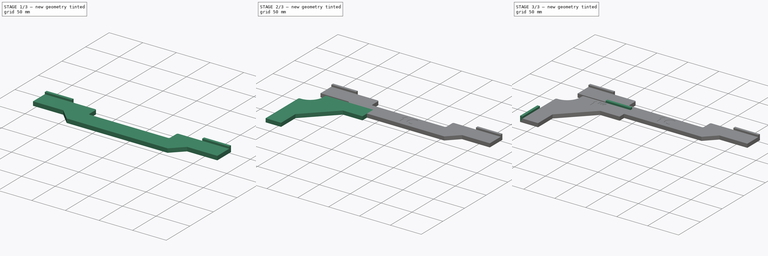
[diagram: build sequence overview — one tinted view per stage of 3, left to right]
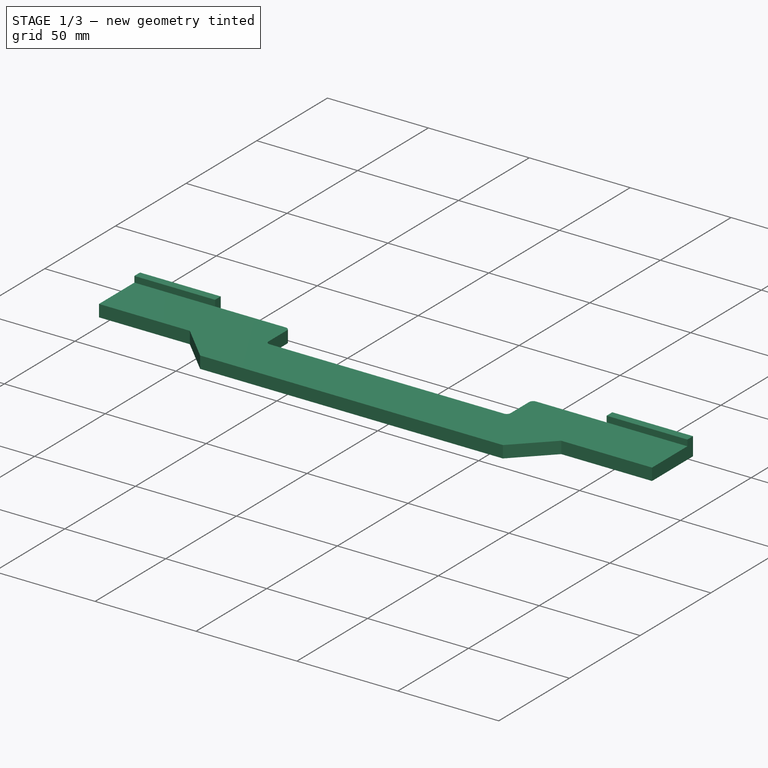
[diagram: stage 1 of 3 — iso view after this stage's code; geometry added in this stage tinted green]
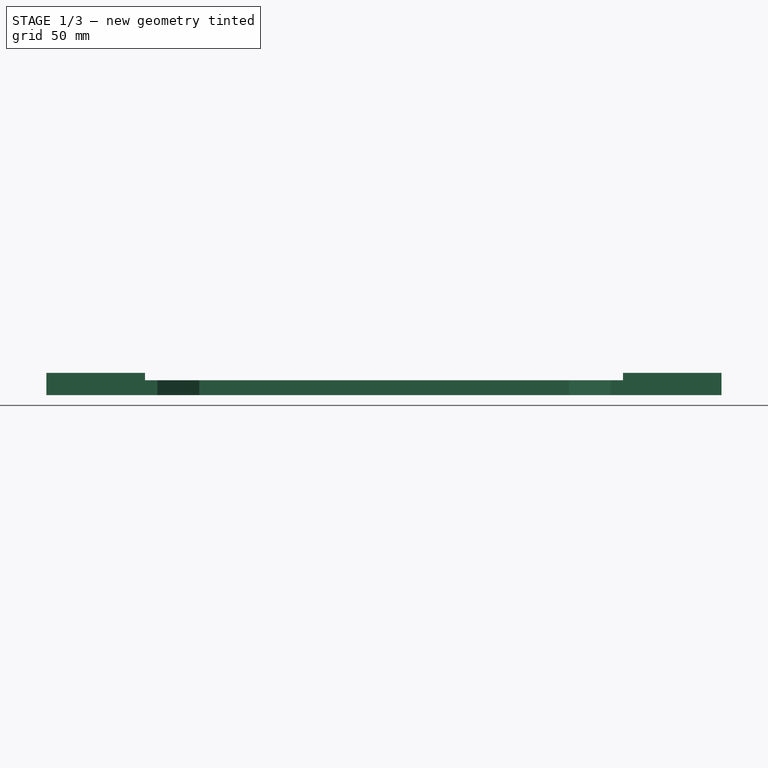
[diagram: stage 1 of 3 — front view after this stage's code; geometry added in this stage tinted green]
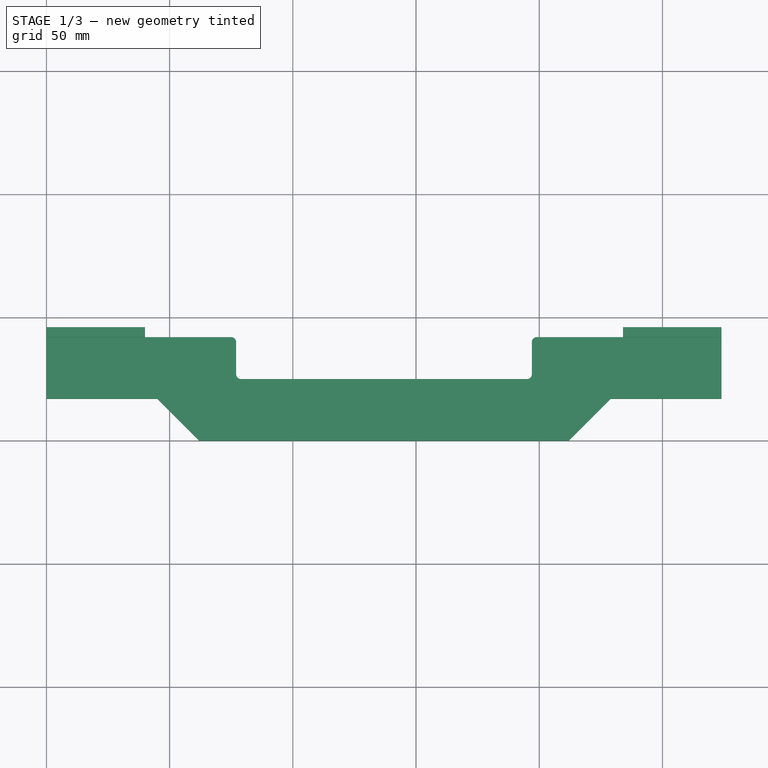
[diagram: stage 1 of 3 — top view after this stage's code; geometry added in this stage tinted green]
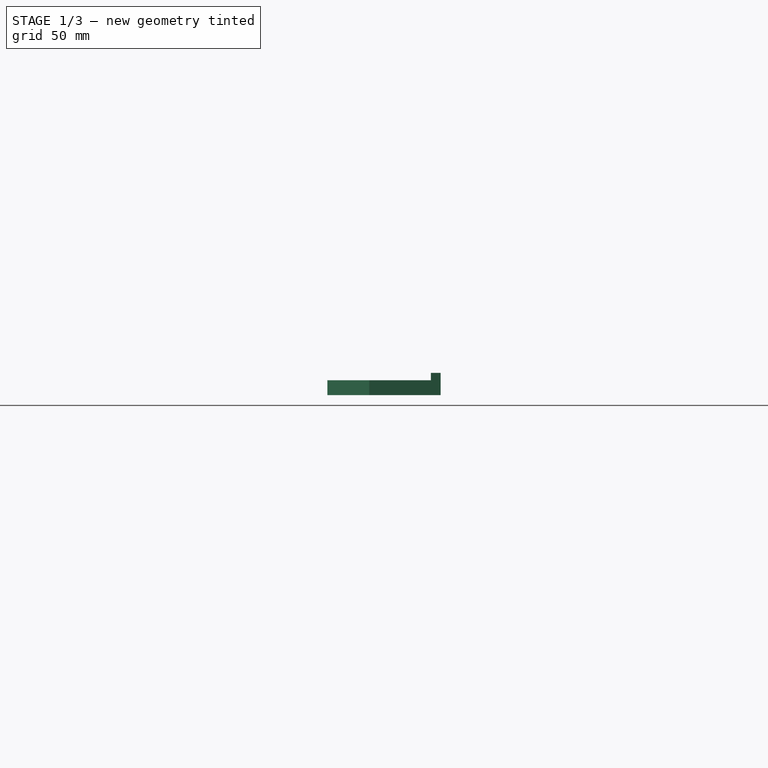
[diagram: stage 1 of 3 — right view after this stage's code; geometry added in this stage tinted green]
FCSTD DOCUMENT  (FreeCAD 1.0R39109 (Git))
Label: BottomSheet
License: All rights reserved
LicenseURL: https://en.wikipedia.org/wiki/All_rights_reserved
objects: Sketcher::SketchObject×6, PartDesign::Pad×4, PartDesign::Pocket×2, PartDesign::Body×2
note: 32 computed .brp shape members not serialized (recipe doc carries the construction recipe); baked Part::Feature solids carry a one-line shape summary decoded from their .brp

FEATURE [PartDesign::Body] Body  label="Corner"
  AllowCompound = false
  Group = -> [Sketch001,Pad,Sketch002,Pad001,Sketch003,Pocket]
  Origin = -> Origin
  Tip = -> Pocket
FEATURE [Sketcher::SketchObject] Sketch004
  ArcFitTolerance = 1e-06
  AttachmentSupport = -> [XY_Plane001]
  FullyConstrained = true
  MakeInternals = false
  MapMode = 5
  sketch-geometry (16):
    g0: ArcOfCircle CenterX=75 CenterY=40 CenterZ=0 NormalX=0 NormalY=0 NormalZ=1 AngleXU=0 Radius=2 StartAngle=0 EndAngle=1.5708
    g1: ArcOfCircle CenterX=79 CenterY=27 CenterZ=0 NormalX=0 NormalY=0 NormalZ=1 AngleXU=0 Radius=2 StartAngle=3.14159 EndAngle=4.71239
    g2: ArcOfCircle CenterX=195 CenterY=27 CenterZ=0 NormalX=0 NormalY=0 NormalZ=1 AngleXU=0 Radius=2 StartAngle=4.71239 EndAngle=6.28319
    g3: ArcOfCircle CenterX=199 CenterY=40 CenterZ=0 NormalX=0 NormalY=0 NormalZ=1 AngleXU=0 Radius=2 StartAngle=1.5708 EndAngle=3.14159
    g4: LineSegment StartX=77 StartY=40 StartZ=0 EndX=77 EndY=27 EndZ=0
    g5: LineSegment StartX=197 StartY=40 StartZ=0 EndX=197 EndY=27 EndZ=0
    g6: LineSegment StartX=195 StartY=25 StartZ=0 EndX=79 EndY=25 EndZ=0
    g7: LineSegment StartX=199 StartY=42 StartZ=0 EndX=274 EndY=42 EndZ=0
    g8: LineSegment StartX=75 StartY=42 StartZ=0 EndX=0 EndY=42 EndZ=0
    g9: LineSegment StartX=274 StartY=42 StartZ=0 EndX=274 EndY=17 EndZ=0
    g10: LineSegment StartX=0 StartY=42 StartZ=0 EndX=0 EndY=17 EndZ=0
    g11: LineSegment StartX=274 StartY=17 StartZ=0 EndX=229 EndY=17 EndZ=0
    g12: LineSegment StartX=229 StartY=17 StartZ=0 EndX=212 EndY=0 EndZ=0
    g13: LineSegment StartX=212 StartY=0 StartZ=0 EndX=62 EndY=0 EndZ=0
    g14: LineSegment StartX=62 StartY=0 StartZ=0 EndX=45 EndY=17 EndZ=0
    g15: LineSegment StartX=45 StartY=17 StartZ=0 EndX=0 EndY=17 EndZ=0
  constraints (52):
    c: Horizontal(g0,g0)
    c: Vertical(g0,g0)
    c: Radius(g0) = 2
    c: Vertical(g3,g3)
    c: Horizontal(g3,g3)
    c: Horizontal(g2,g2)
    c: Vertical(g2,g2)
    c: Horizontal(g1,g1)
    c: Vertical(g1,g1)
    c: Equal(g0,g1)
    c: Equal(g1,g2)
    c: Equal(g2,g3)
    c: Coincident(g4,g0)
    c: Coincident(g4,g1)
    c: Vertical(g4)
    c: DistanceY(g4,g4) = 13
    c: Coincident(g5,g3)
    c: Coincident(g5,g2)
    c: Vertical(g5)
    c: Coincident(g6,g2)
    c: Coincident(g6,g1)
    c: Horizontal(g6)
    c: DistanceX(g6,g6) = 116
    c: Coincident(g7,g3)
    c: Horizontal(g7)
    c: Coincident(g8,g0)
    c: Horizontal(g8)
    c: Equal(g4,g5)
    c: DistanceX(g7,g7) = 75
    c: Coincident(g9,g7)
    c: Vertical(g9)
    c: DistanceY(g9,g9) = 25
    c: Vertical(g10)
    c: DistanceX(g10,g0) = 75
    c: Coincident(g8,g10)
    c: Horizontal(g11)
    c: Coincident(g12,g11)
    c: PointOnObject(g12,g-1)
    c: Coincident(g13,g12)
    c: PointOnObject(g13,g-1)
    c: Coincident(g14,g13)
    c: Coincident(g15,g14)
    c: Horizontal(g15)
    c: Coincident(g9,g11)
    c: Equal(g15,g11)
    c: Angle(g12,g11) = 2.35619
    c: Angle(g15,g14) = 2.35619
    c: Horizontal(g14,g11)
    c: Coincident(g15,g10)
    c: PointOnObject(g10,g-2)
    c: DistanceY(g-1,g8) = 42
    c: DistanceX(g15,g15) = 45
FEATURE [PartDesign::Pad] Pad002
  Direction = (0,0,1)
  Length = 6
  Length2 = 10
  Profile = -> Sketch004
  ReferenceAxis = -> Sketch004 [N_Axis]
  Refine = true
  Suppressed = false
  Type = 0
FEATURE [Sketcher::SketchObject] Sketch005
  ArcFitTolerance = 1e-06
  AttachmentSupport = -> [XY_Plane001]
  ExternalGeometry = -> [Pad002]
  FullyConstrained = true
  MakeInternals = false
  MapMode = 5
  sketch-geometry (8):
    g0: LineSegment StartX=274 StartY=42 StartZ=0 EndX=274 EndY=46 EndZ=0
    g1: LineSegment StartX=274 StartY=46 StartZ=0 EndX=234 EndY=46 EndZ=0
    g2: LineSegment StartX=234 StartY=46 StartZ=0 EndX=234 EndY=42 EndZ=0
    g3: LineSegment StartX=234 StartY=42 StartZ=0 EndX=274 EndY=42 EndZ=0
    g4: LineSegment StartX=0 StartY=42 StartZ=0 EndX=40 EndY=42 EndZ=0
    g5: LineSegment StartX=40 StartY=42 StartZ=0 EndX=40 EndY=46 EndZ=0
    g6: LineSegment StartX=40 StartY=46 StartZ=0 EndX=0 EndY=46 EndZ=0
    g7: LineSegment StartX=0 StartY=46 StartZ=0 EndX=0 EndY=42 EndZ=0
  constraints (22):
    c: Coincident(g0,g1)
    c: Coincident(g1,g2)
    c: Coincident(g2,g3)
    c: Coincident(g3,g0)
    c: Vertical(g0)
    c: Vertical(g2)
    c: Horizontal(g1)
    c: Horizontal(g3)
    c: Coincident(g0,g-3)
    c: DistanceX(g1,g1) = 40
    c: DistanceY(g0,g0) = 4
    c: Coincident(g4,g5)
    c: Coincident(g5,g6)
    c: Coincident(g6,g7)
    c: Coincident(g7,g4)
    c: Horizontal(g4)
    c: Horizontal(g6)
    c: Vertical(g5)
    c: Vertical(g7)
    c: DistanceX(g6,g6) = 40
    c: Distance(g7,g7) = 4
    c: Coincident(g-4,g4)
FEATURE [PartDesign::Pad] Pad003
  BaseFeature = -> Pad002
  Direction = (0,0,1)
  Length = 9
  Length2 = 10
  Profile = -> Sketch005
  ReferenceAxis = -> Sketch005 [N_Axis]
  Refine = true
  Suppressed = false
  Type = 0
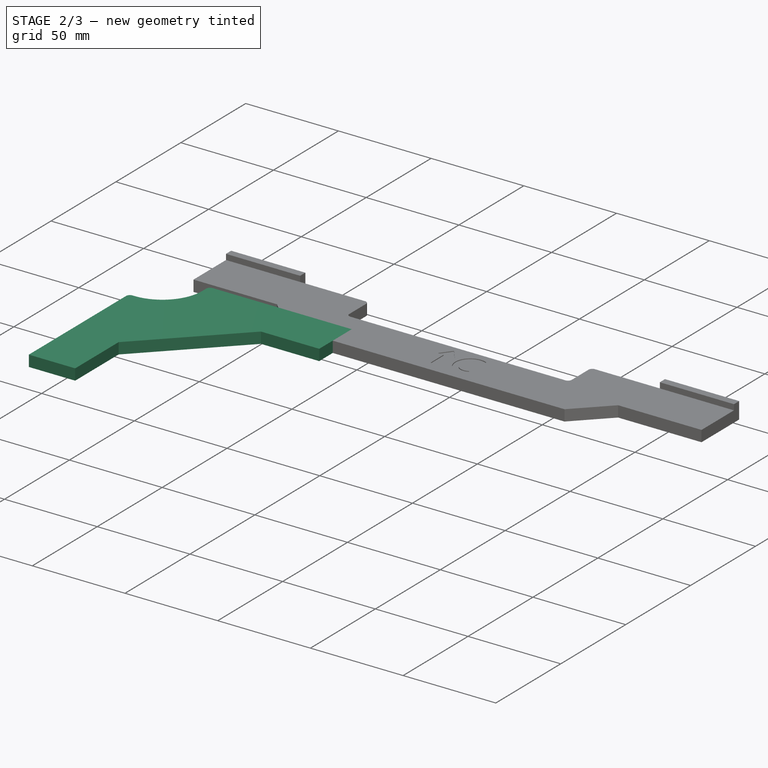
[diagram: stage 2 of 3 — iso view after this stage's code; geometry added in this stage tinted green]
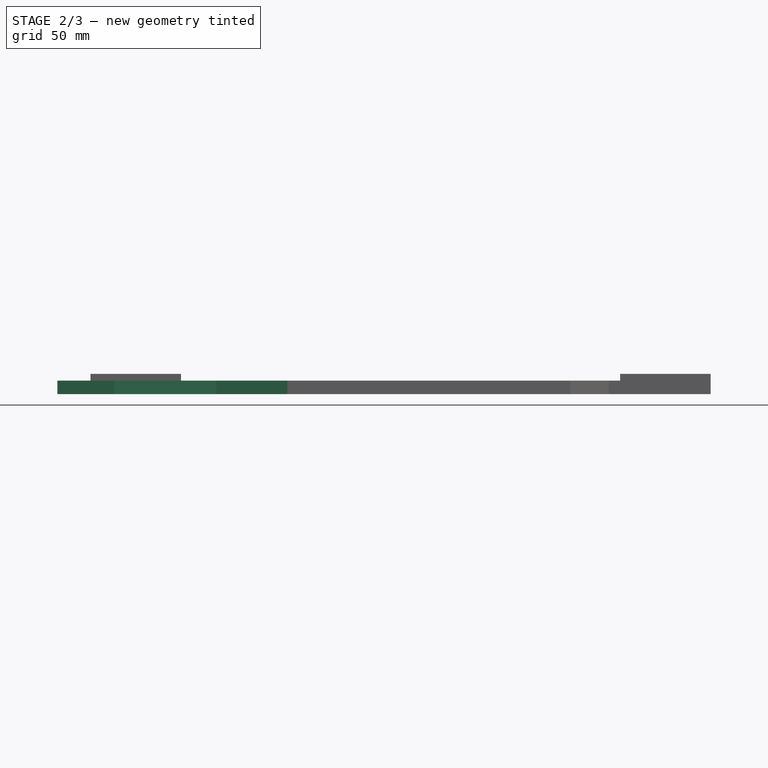
[diagram: stage 2 of 3 — front view after this stage's code; geometry added in this stage tinted green]
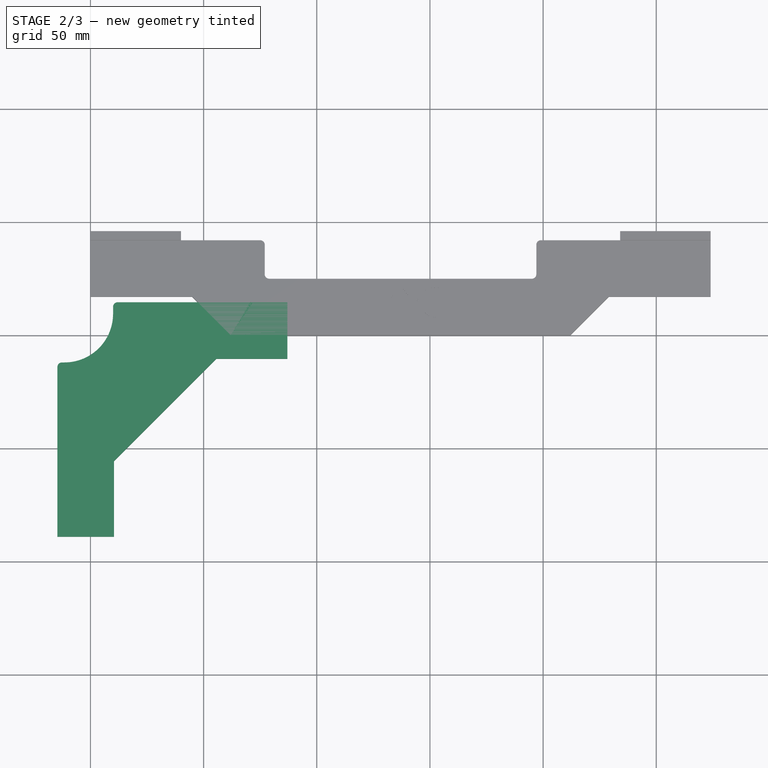
[diagram: stage 2 of 3 — top view after this stage's code; geometry added in this stage tinted green]
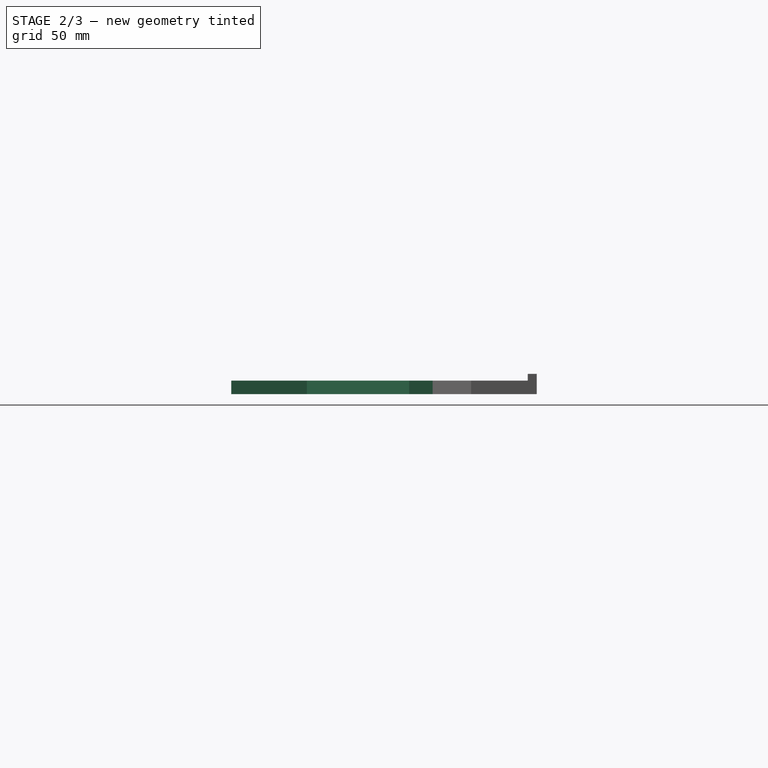
[diagram: stage 2 of 3 — right view after this stage's code; geometry added in this stage tinted green]
FEATURE [Sketcher::SketchObject] Sketch001
  ArcFitTolerance = 1e-06
  AttachmentSupport = -> [XY_Plane]
  FullyConstrained = true
  MakeInternals = false
  MapMode = 5
  sketch-geometry (12):
    g0: ArcOfCircle CenterX=-11.5 CenterY=9.5 CenterZ=0 NormalX=0 NormalY=0 NormalZ=1 AngleXU=0 Radius=21.5 StartAngle=4.71239 EndAngle=6.28319
    g1: LineSegment StartX=10 StartY=9.5 StartZ=0 EndX=10 EndY=12.6 EndZ=0
    g2: LineSegment StartX=12 StartY=14.6 StartZ=0 EndX=87 EndY=14.6 EndZ=0
    g3: LineSegment StartX=-14.6 StartY=-89 StartZ=0 EndX=-14.6 EndY=-14 EndZ=0
    g4: LineSegment StartX=-11.5 StartY=-12 StartZ=0 EndX=-12.6 EndY=-12 EndZ=0
    g5: ArcOfCircle CenterX=12 CenterY=12.6 CenterZ=0 NormalX=0 NormalY=0 NormalZ=1 AngleXU=0 Radius=2 StartAngle=1.5708 EndAngle=3.14159
    g6: ArcOfCircle CenterX=-12.6 CenterY=-14 CenterZ=0 NormalX=0 NormalY=0 NormalZ=1 AngleXU=0 Radius=2 StartAngle=1.5708 EndAngle=3.14159
    g7: LineSegment StartX=87 StartY=14.6 StartZ=0 EndX=87 EndY=-10.4 EndZ=0
    g8: LineSegment StartX=-14.6 StartY=-89 StartZ=0 EndX=10.4 EndY=-89 EndZ=0
    g9: LineSegment StartX=87 StartY=-10.4 StartZ=0 EndX=55.5741 EndY=-10.4 EndZ=0
    g10: LineSegment StartX=10.4 StartY=-89 StartZ=0 EndX=10.4 EndY=-55.5741 EndZ=0
    g11: LineSegment StartX=10.4 StartY=-55.5741 StartZ=0 EndX=55.5741 EndY=-10.4 EndZ=0
  constraints (39):
    c: Coincident(g1,g0)
    c: Vertical(g1)
    c: Horizontal(g2)
    c: Vertical(g3)
    c: Coincident(g4,g0)
    c: Horizontal(g4)
    c: Coincident(g5,g2)
    c: Coincident(g5,g1)
    c: Coincident(g6,g4)
    c: Coincident(g6,g3)
    c: Radius(g0) = 21.5
    c: Radius(g6) = 2
    c: Distance(g4,g4) = 1.1
    c: Radius(g5) = 2
    c: DistanceY(g1,g1) = 3.1
    c: Vertical(g5,g2)
    c: Horizontal(g5,g1)
    c: Vertical(g6,g4)
    c: Horizontal(g6,g3)
    c: Vertical(g0,g0)
    c: Horizontal(g0,g0)
    c: DistanceX(g0,g-1) = 11.5
    c: Distance(g0,g-1) = 9.5
    c: DistanceX(g2,g2) = 75
    c: DistanceY(g3,g3) = 75
    c: Coincident(g7,g2)
    c: Vertical(g7)
    c: Coincident(g8,g3)
    c: Horizontal(g8)
    c: DistanceY(g7,g7) = 25
    c: Equal(g7,g8)
    c: Coincident(g9,g7)
    c: Horizontal(g9)
    c: Coincident(g10,g8)
    c: Vertical(g10)
    c: Coincident(g11,g10)
    c: Coincident(g11,g9)
    c: Angle(g11,g9) = 2.35619
    c: Distance(g0,g11) = 40
FEATURE [PartDesign::Pad] Pad
  Direction = (0,0,1)
  Length = 6
  Length2 = 10
  Profile = -> Sketch001
  ReferenceAxis = -> Sketch001 [N_Axis]
  Refine = true
  Suppressed = false
  Type = 0
FEATURE [Sketcher::SketchObject] Sketch006
  ArcFitTolerance = 1e-06
  AttachmentSupport = -> [Pad003]
  ExternalGeometry = -> [Pad003]
  FullyConstrained = true
  MakeInternals = false
  MapMode = 5
  Placement = pos=(0,0,6) rot=(0,0,1;0rad)
  sketch-geometry (11):
    g0: LineSegment StartX=137 StartY=22 StartZ=0 EndX=132.4 EndY=16 EndZ=0
    g1: LineSegment StartX=132.4 StartY=16 StartZ=0 EndX=135.6 EndY=16 EndZ=0
    g2: LineSegment StartX=135.6 StartY=16 StartZ=0 EndX=135.6 EndY=6 EndZ=0
    g3: LineSegment StartX=135.6 StartY=6 StartZ=0 EndX=138.4 EndY=6 EndZ=0
    g4: LineSegment StartX=138.4 StartY=6 StartZ=0 EndX=138.4 EndY=16 EndZ=0
    g5: LineSegment StartX=138.4 StartY=16 StartZ=0 EndX=141.6 EndY=16 EndZ=0
    g6: LineSegment StartX=141.6 StartY=16 StartZ=0 EndX=137 EndY=22 EndZ=0
    g7: ArcOfCircle CenterX=152 CenterY=13.0961 CenterZ=0 NormalX=0 NormalY=0 NormalZ=1 AngleXU=0 Radius=8 StartAngle=1.09083 EndAngle=5.19235
    g8: ArcOfCircle CenterX=152 CenterY=13.0961 CenterZ=0 NormalX=0 NormalY=0 NormalZ=1 AngleXU=0 Radius=5.21637 StartAngle=1.04403 EndAngle=5.23915
    g9: LineSegment StartX=155.694 StartY=20.1922 StartZ=0 EndX=154.622 EndY=17.6053 EndZ=0
    g10: LineSegment StartX=154.622 StartY=8.58686 StartZ=0 EndX=155.694 EndY=6 EndZ=0
  constraints (34):
    c: Coincident(g1,g0)
    c: Horizontal(g1)
    c: Coincident(g2,g1)
    c: Coincident(g3,g2)
    c: Horizontal(g3)
    c: Coincident(g4,g3)
    c: Vertical(g4)
    c: Coincident(g5,g4)
    c: Horizontal(g5)
    c: Coincident(g6,g5)
    c: Coincident(g6,g0)
    c: Equal(g1,g5)
    c: Horizontal(g1,g4)
    c: Equal(g0,g6)
    c: Vertical(g2)
    c: DistanceY(g0,g0) = 6
    c: Distance(g1,g1) = 3.2
    c: DistanceY(g2,g2) = 10
    c: Distance(g3,g3) = 2.8
    c: Coincident(g8,g7)
    c: Radius(g7) = 8
    c: Coincident(g9,g7)
    c: Coincident(g9,g8)
    c: Coincident(g10,g8)
    c: Coincident(g10,g7)
    c: Vertical(g8,g8)
    c: Vertical(g7,g7)
    c: Distance(g9,g9) = 2.8
    c: Angle(g7) = 4.10152
    c: Angle(g10,g9) = 2.35619
    c: Horizontal(g7,g3)
    c: DistanceX(g0,g7) = 15
    c: DistanceX(g-3,g0) = 60
    c: DistanceY(g0,g-3) = 5
FEATURE [PartDesign::Pocket] Pocket001
  BaseFeature = -> Pad003
  Direction = (0,0,-1)
  Length = 0.4
  Length2 = 5
  Profile = -> Sketch006
  ReferenceAxis = -> Sketch006 [N_Axis]
  Refine = true
  Suppressed = false
  Type = 0
FEATURE [PartDesign::Body] Body001  label="Screen"
  AllowCompound = false
  Group = -> [Sketch004,Pad002,Sketch005,Pad003,Sketch006,Pocket001]
  Origin = -> Origin001
  Tip = -> Pocket001
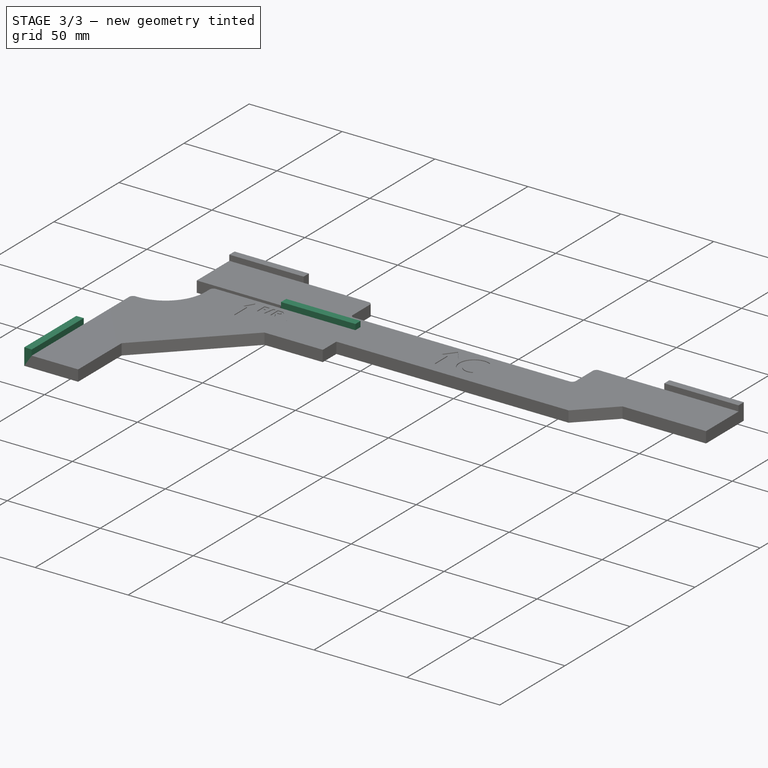
[diagram: stage 3 of 3 — iso view after this stage's code; geometry added in this stage tinted green]
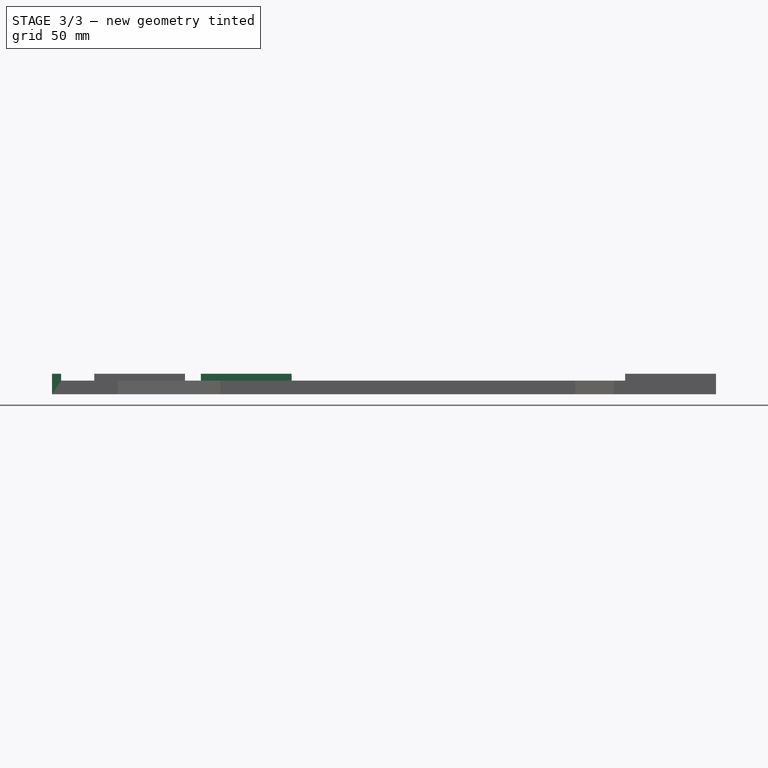
[diagram: stage 3 of 3 — front view after this stage's code; geometry added in this stage tinted green]
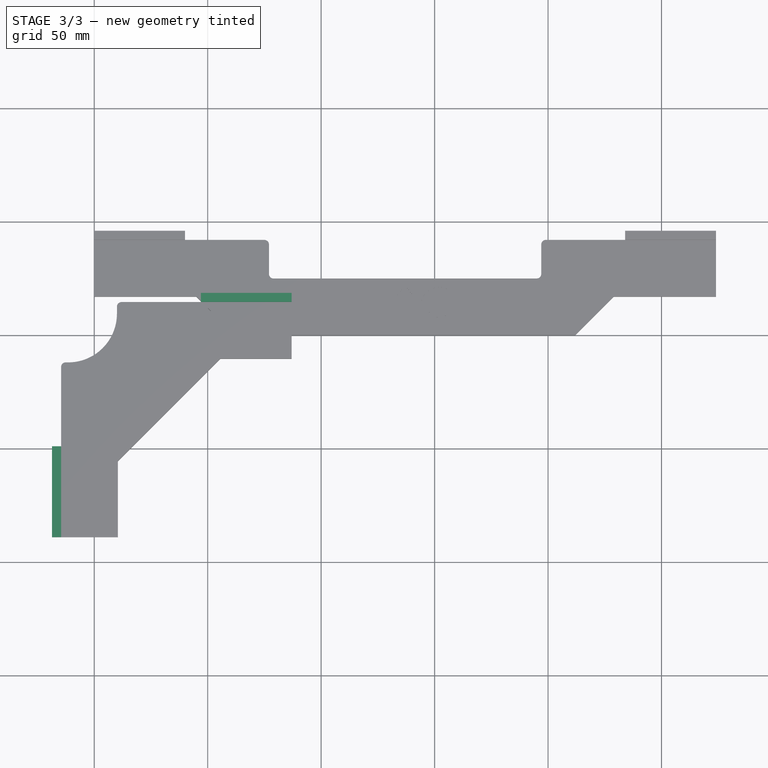
[diagram: stage 3 of 3 — top view after this stage's code; geometry added in this stage tinted green]
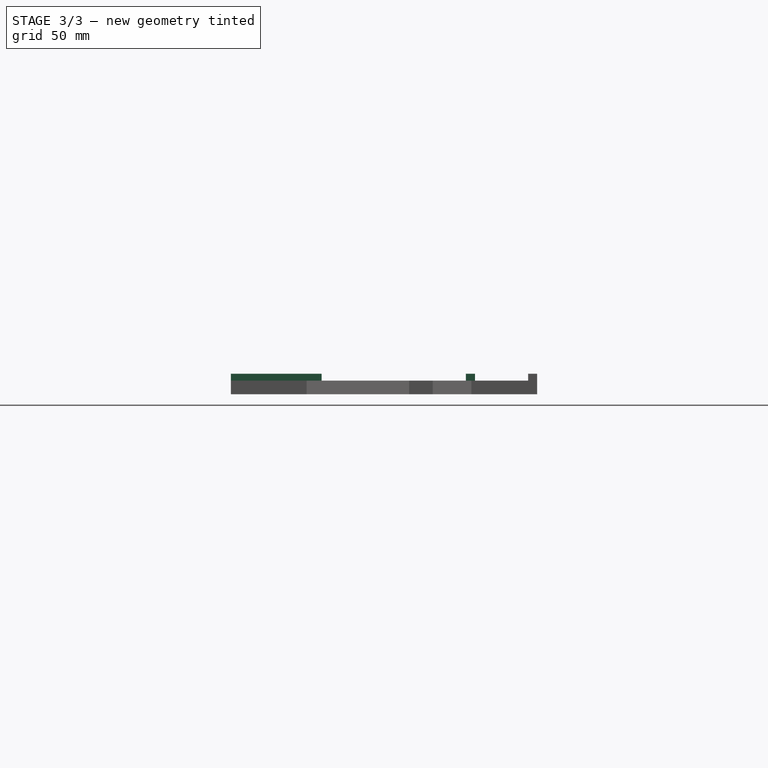
[diagram: stage 3 of 3 — right view after this stage's code; geometry added in this stage tinted green]
FEATURE [Sketcher::SketchObject] Sketch002
  ArcFitTolerance = 1e-06
  AttachmentSupport = -> [XY_Plane]
  ExternalGeometry = -> [Pad]
  FullyConstrained = true
  MakeInternals = false
  MapMode = 5
  sketch-geometry (8):
    g0: LineSegment StartX=47 StartY=18.6 StartZ=0 EndX=47 EndY=14.6 EndZ=0
    g1: LineSegment StartX=47 StartY=14.6 StartZ=0 EndX=87 EndY=14.6 EndZ=0
    g2: LineSegment StartX=87 StartY=14.6 StartZ=0 EndX=87 EndY=18.6 EndZ=0
    g3: LineSegment StartX=87 StartY=18.6 StartZ=0 EndX=47 EndY=18.6 EndZ=0
    g4: LineSegment StartX=-14.6 StartY=-49 StartZ=0 EndX=-18.6 EndY=-49 EndZ=0
    g5: LineSegment StartX=-18.6 StartY=-49 StartZ=0 EndX=-18.6 EndY=-89 EndZ=0
    g6: LineSegment StartX=-14.6 StartY=-89 StartZ=0 EndX=-18.6 EndY=-89 EndZ=0
    g7: LineSegment StartX=-14.6 StartY=-89 StartZ=0 EndX=-14.6 EndY=-49 EndZ=0
  constraints (22):
    c: Coincident(g0,g1)
    c: Coincident(g1,g2)
    c: Coincident(g2,g3)
    c: Coincident(g3,g0)
    c: Vertical(g0)
    c: Horizontal(g1)
    c: Horizontal(g3)
    c: Coincident(g4,g5)
    c: Vertical(g5)
    c: Horizontal(g4)
    c: Coincident(g-3,g1)
    c: DistanceY(g-4,g4) = 40
    c: Distance(g4,g4) = 4
    c: Coincident(g6,g5)
    c: Distance(g0,g0) = 4
    c: Distance(g1,g1) = 40
    c: Vertical(g2)
    c: Horizontal(g6)
    c: Coincident(g-4,g6)
    c: Coincident(g7,g6)
    c: Coincident(g7,g4)
    c: Vertical(g7)
FEATURE [PartDesign::Pad] Pad001
  BaseFeature = -> Pad
  Direction = (0,0,1)
  Length = 9
  Length2 = 10
  Profile = -> Sketch002
  ReferenceAxis = -> Sketch002 [N_Axis]
  Refine = true
  Suppressed = false
  Type = 0
FEATURE [Sketcher::SketchObject] Sketch003
  ArcFitTolerance = 1e-06
  AttachmentSupport = -> [Pad001]
  FullyConstrained = true
  MakeInternals = false
  MapMode = 5
  Placement = pos=(0,0,6) rot=(0,0,1;0rad)
  sketch-geometry (33):
    g0: LineSegment StartX=34 StartY=-3 StartZ=0 EndX=34 EndY=7 EndZ=0
    g1: LineSegment StartX=34 StartY=7 StartZ=0 EndX=32 EndY=7 EndZ=0
    g2: LineSegment StartX=32 StartY=7 StartZ=0 EndX=35 EndY=12 EndZ=0
    g3: LineSegment StartX=35 StartY=12 StartZ=0 EndX=38 EndY=7 EndZ=0
    g4: LineSegment StartX=38 StartY=7 StartZ=0 EndX=36 EndY=7 EndZ=0
    g5: LineSegment StartX=36 StartY=7 StartZ=0 EndX=36 EndY=-3 EndZ=0
    g6: LineSegment StartX=36 StartY=-3 StartZ=0 EndX=34 EndY=-3 EndZ=0
    g7: LineSegment StartX=40 StartY=6 StartZ=0 EndX=40 EndY=12 EndZ=0
    g8: LineSegment StartX=40 StartY=12 StartZ=0 EndX=42.8 EndY=12 EndZ=0
    g9: LineSegment StartX=42.8 StartY=12 StartZ=0 EndX=42.8 EndY=10.8 EndZ=0
    g10: LineSegment StartX=42.8 StartY=10.8 StartZ=0 EndX=41.2 EndY=10.8 EndZ=0
    g11: LineSegment StartX=41.2 StartY=10.8 StartZ=0 EndX=41.2 EndY=9.6 EndZ=0
    g12: LineSegment StartX=41.2 StartY=9.6 StartZ=0 EndX=42.4 EndY=9.6 EndZ=0
    g13: LineSegment StartX=42.4 StartY=9.6 StartZ=0 EndX=42.4 EndY=8.4 EndZ=0
    g14: LineSegment StartX=42.4 StartY=8.4 StartZ=0 EndX=41.2 EndY=8.4 EndZ=0
    g15: LineSegment StartX=41.2 StartY=8.4 StartZ=0 EndX=41.2 EndY=6 EndZ=0
    g16: LineSegment StartX=41.2 StartY=6 StartZ=0 EndX=40 EndY=6 EndZ=0
    g17: LineSegment StartX=44.8 StartY=12 StartZ=0 EndX=43.742 EndY=6 EndZ=0
    g18: LineSegment StartX=43.742 StartY=6 StartZ=0 EndX=44.942 EndY=6 EndZ=0
    g19: LineSegment StartX=44.942 StartY=6 StartZ=0 EndX=46 EndY=12 EndZ=0
    g20: LineSegment StartX=46 StartY=12 StartZ=0 EndX=44.8 EndY=12 EndZ=0
    g21: LineSegment StartX=47.2 StartY=12 StartZ=0 EndX=47.2 EndY=6 EndZ=0
    g22: LineSegment StartX=47.2 StartY=12 StartZ=0 EndX=49.6 EndY=12 EndZ=0
    g23: LineSegment StartX=48.4 StartY=10.8 StartZ=0 EndX=48.4 EndY=9.6 EndZ=0
    g24: LineSegment StartX=48.4 StartY=8.4 StartZ=0 EndX=48.4 EndY=6 EndZ=0
    g25: LineSegment StartX=48.4 StartY=6 StartZ=0 EndX=47.2 EndY=6 EndZ=0
    g26: ArcOfCircle CenterX=49.6 CenterY=10.2 CenterZ=0 NormalX=0 NormalY=0 NormalZ=1 AngleXU=0 Radius=0.6 StartAngle=4.71239 EndAngle=7.85398
    g27: ArcOfCircle CenterX=49.6 CenterY=10.2 CenterZ=0 NormalX=0 NormalY=0 NormalZ=1 AngleXU=0 Radius=1.8 StartAngle=4.71239 EndAngle=7.85398
    g28: LineSegment StartX=48.4 StartY=8.4 StartZ=0 EndX=49.6 EndY=6 EndZ=0
    g29: LineSegment StartX=49.6 StartY=6 StartZ=0 EndX=50.8 EndY=6 EndZ=0
    g30: LineSegment StartX=50.8 StartY=6 StartZ=0 EndX=49.6 EndY=8.4 EndZ=0
    g31: LineSegment StartX=48.4 StartY=10.8 StartZ=0 EndX=49.6 EndY=10.8 EndZ=0
    g32: LineSegment StartX=48.4 StartY=9.6 StartZ=0 EndX=49.6 EndY=9.6 EndZ=0
  constraints (97):
    c: Vertical(g0)
    c: Horizontal(g1)
    c: Coincident(g4,g3)
    c: Vertical(g5)
    c: Coincident(g6,g5)
    c: Coincident(g6,g0)
    c: Horizontal(g6)
    c: Horizontal(g4)
    c: Coincident(g5,g4)
    c: Coincident(g3,g2)
    c: Coincident(g1,g0)
    c: Coincident(g1,g2)
    c: Horizontal(g4,g0)
    c: Distance(g6,g6) = 2
    c: Equal(g1,g4)
    c: Equal(g2,g3)
    c: DistanceY(g1,g2) = 5
    c: Vertical(g7)
    c: Coincident(g8,g7)
    c: Horizontal(g8)
    c: Vertical(g9)
    c: Horizontal(g10)
    c: Vertical(g11)
    c: Coincident(g12,g11)
    c: Horizontal(g12)
    c: Coincident(g14,g13)
    c: Horizontal(g14)
    c: Coincident(g15,g14)
    c: Vertical(g15)
    c: Coincident(g16,g15)
    c: Coincident(g16,g7)
    c: Horizontal(g16)
    c: Coincident(g13,g12)
    c: Coincident(g11,g10)
    c: Coincident(g10,g9)
    c: Coincident(g8,g9)
    c: Distance(g16,g16) = 1.2
    c: Equal(g16,g13)
    c: Equal(g13,g9)
    c: Vertical(g13)
    c: Vertical(g14,g11)
    c: DistanceY(g15,g15) = 2.4
    c: DistanceY(g11,g11) = 1.2
    c: Distance(g8,g8) = 2.8
    c: DistanceX(g7,g12) = 2.4
    c: Distance(g1,g1) = 2
    c: Horizontal(g2,g7)
    c: DistanceX(g2,g7) = 5
    c: Distance(g2,g-2) = 35
    c: Distance(g2,g-1) = 12
    c: DistanceY(g0,g0) = 10
    c: Coincident(g18,g17)
    c: Horizontal(g18)
    c: Coincident(g19,g18)
    c: Coincident(g20,g19)
    c: Coincident(g20,g17)
    c: Horizontal(g20)
    c: Parallel(g17,g19)
    c: Angle(g18,g17) = 1.39626
    c: Horizontal(g17,g15)
    c: Horizontal(g17,g8)
    c: Equal(g16,g18)
    c: Vertical(g21)
    c: Coincident(g22,g21)
    c: Horizontal(g22)
    c: Vertical(g23)
    c: Vertical(g24)
    c: Coincident(g25,g24)
    c: Coincident(g25,g21)
    c: Horizontal(g25)
    c: Coincident(g27,g26)
    c: Coincident(g28,g24)
    c: Coincident(g29,g28)
    c: Horizontal(g29)
    c: Coincident(g30,g29)
    c: Coincident(g30,g27)
    c: Coincident(g31,g23)
    c: Horizontal(g31)
    c: Coincident(g32,g23)
    c: Horizontal(g32)
    c: Horizontal(g8,g21)
    c: Horizontal(g10,g23)
    c: Horizontal(g11,g23)
    c: Horizontal(g14,g24)
    c: Horizontal(g15,g21)
    c: Horizontal(g24,g28)
    c: Tangent(g27,g22) = 1.5708
    c: Tangent(g31,g26) = 1.5708
    c: Tangent(g32,g26) = -1.5708
    c: Horizontal(g24,g27)
    c: Parallel(g30,g28)
    c: Equal(g16,g25)
    c: Equal(g25,g29)
    c: DistanceX(g8,g17) = 2
    c: Distance(g19,g21) = 1.2
    c: Vertical(g27,g28)
    c: Vertical(g24,g23)
FEATURE [PartDesign::Pocket] Pocket
  BaseFeature = -> Pad001
  Direction = (0,0,-1)
  Length = 0.4
  Length2 = 5
  Profile = -> Sketch003
  ReferenceAxis = -> Sketch003 [N_Axis]
  Refine = true
  Suppressed = false
  Type = 0
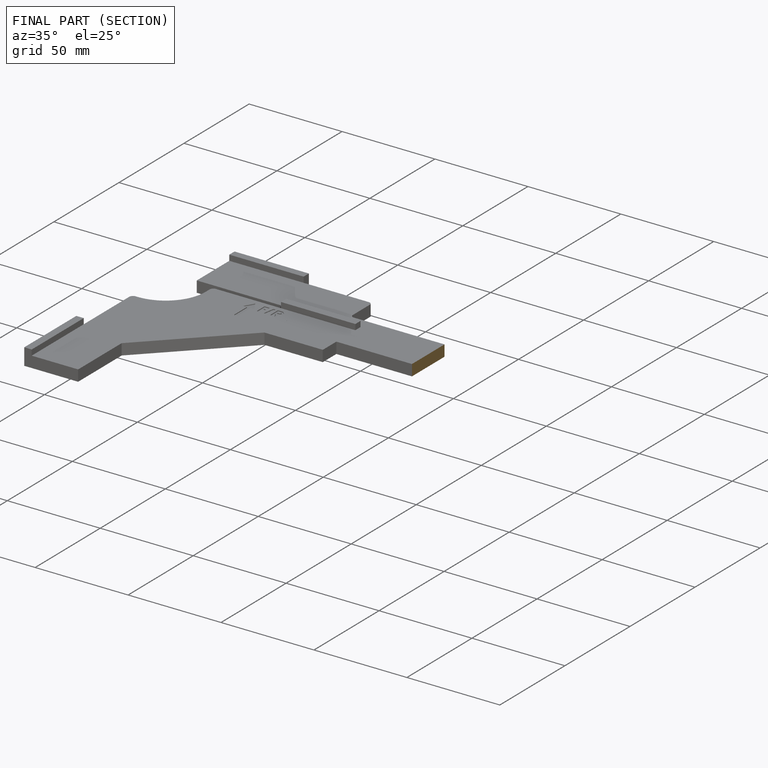
[diagram: finished part — half-section view (interior)]
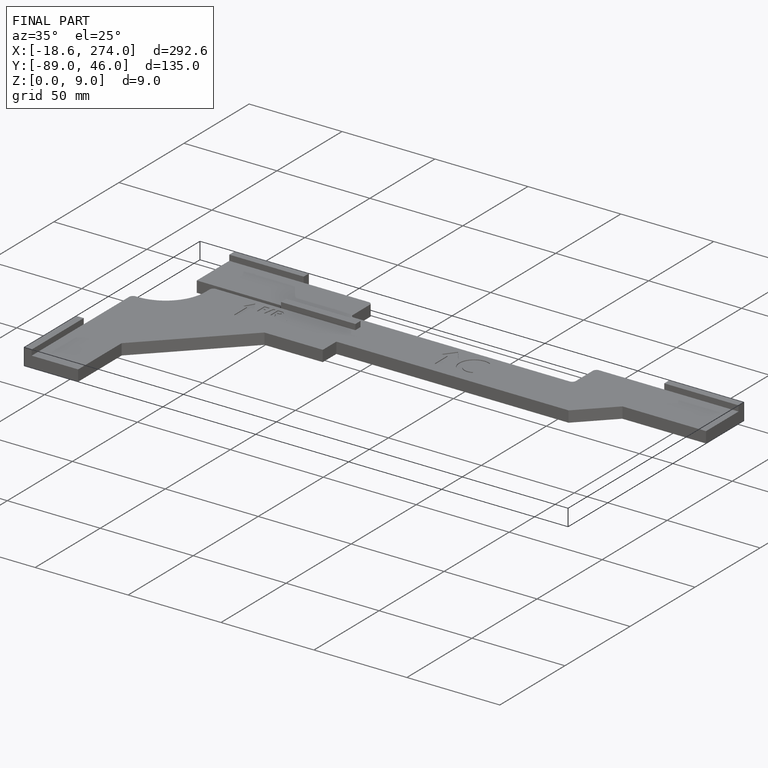
[diagram: finished part — iso view with bounding-box wireframe]
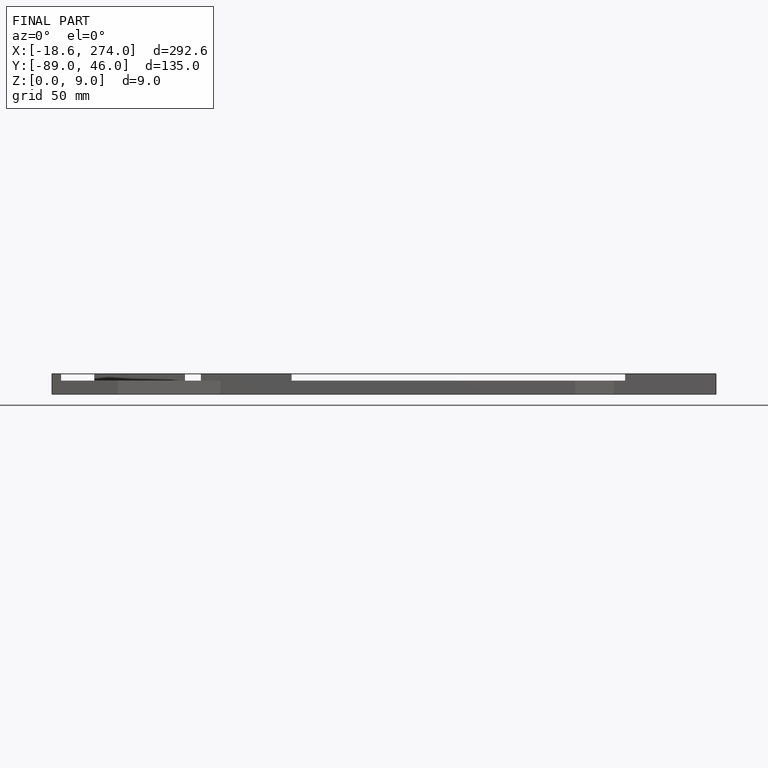
[diagram: finished part — front view with bounding-box wireframe]
